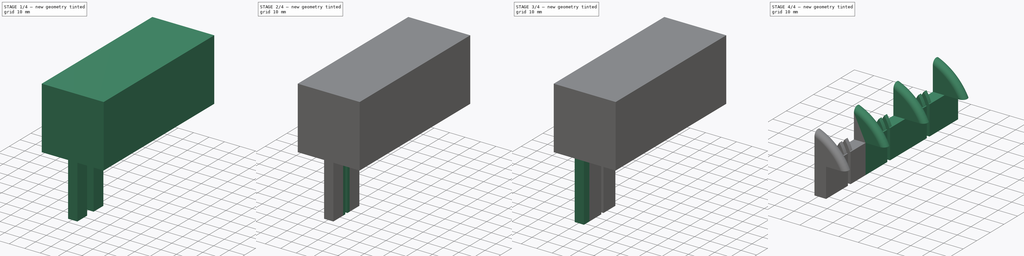
[diagram: build sequence overview — one tinted view per stage of 4, left to right]
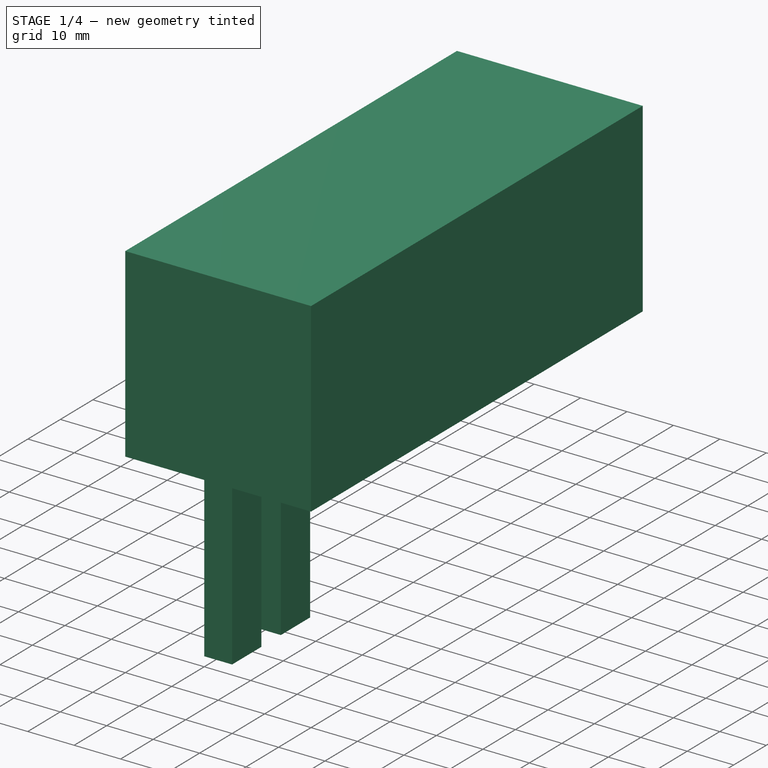
[diagram: stage 1 of 4 — iso view after this stage's code; geometry added in this stage tinted green]
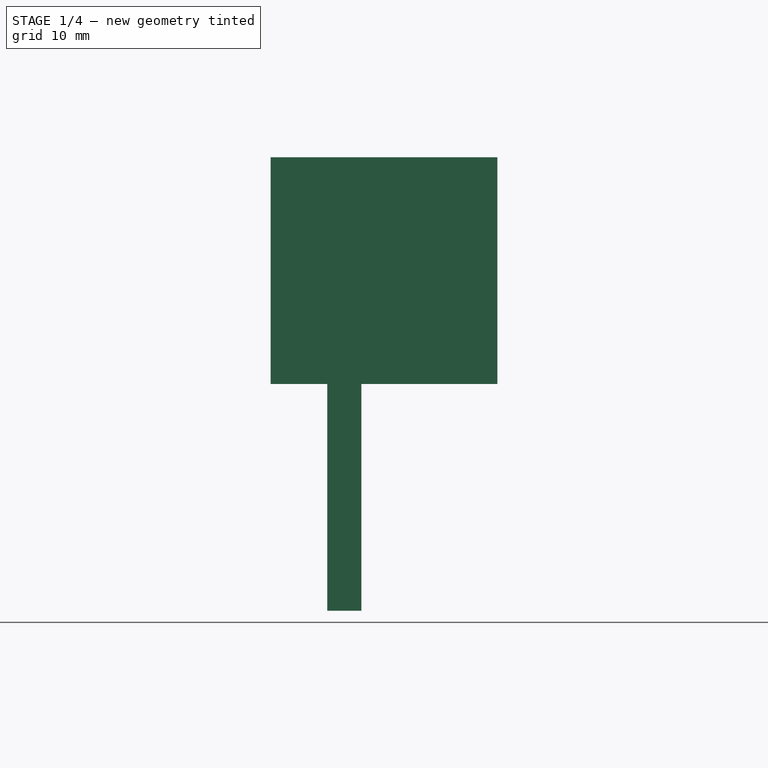
[diagram: stage 1 of 4 — front view after this stage's code; geometry added in this stage tinted green]
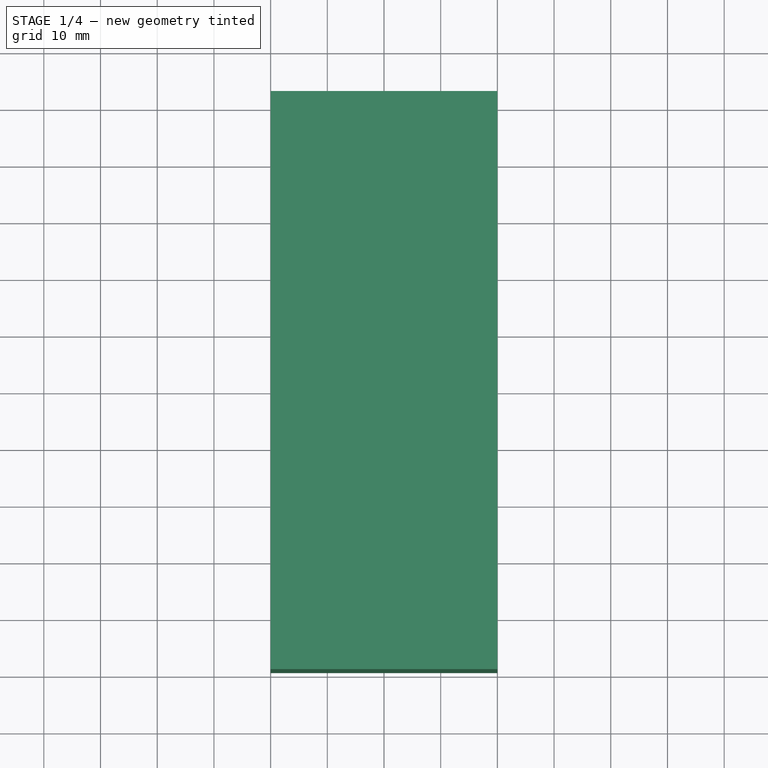
[diagram: stage 1 of 4 — top view after this stage's code; geometry added in this stage tinted green]
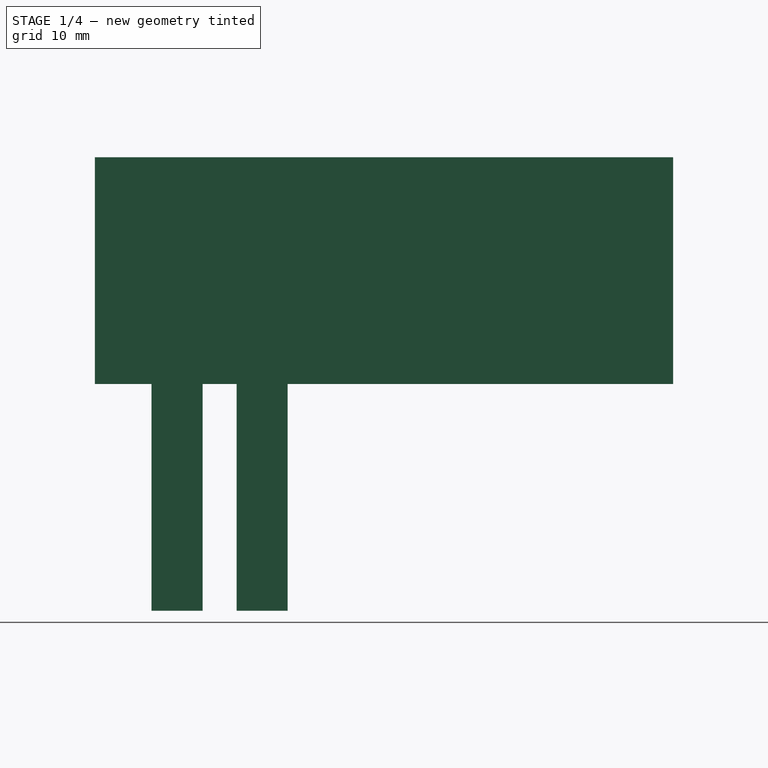
[diagram: stage 1 of 4 — right view after this stage's code; geometry added in this stage tinted green]
FCSTD DOCUMENT  (FreeCAD 0.14R$WCREV$)
Label: red-needlesupport
License: CC-BY 3.0
LicenseURL: http://creativecommons.org/licenses/by/3.0/
objects: Sketcher::SketchObject×3, PartDesign::Pad×3, Part::Box×3, App::MeasureDistance×2, PartDesign::Fillet×1, Part::Cut×1, Part::MultiFuse×1, Part::FeaturePython×1, Part::MultiCommon×1
note: 17 computed .brp shape members not serialized (recipe doc carries the construction recipe); baked Part::Feature solids carry a one-line shape summary decoded from their .brp

FEATURE [Part::Box] Box  label="Cube"
  Height = 55
  Length = 6
  Width = 9
FEATURE [Part::Box] Box001  label="Cube001"
  Height = 55
  Length = 6
  Placement = pos=(0,15,0) rot=(0,0,1;0rad)
  Width = 9
FEATURE [Part::Box] Box002  label="print-area"
  Height = 40
  Length = 40
  Placement = pos=(-10,-10,40) rot=(0,0,1;0rad)
  Width = 102
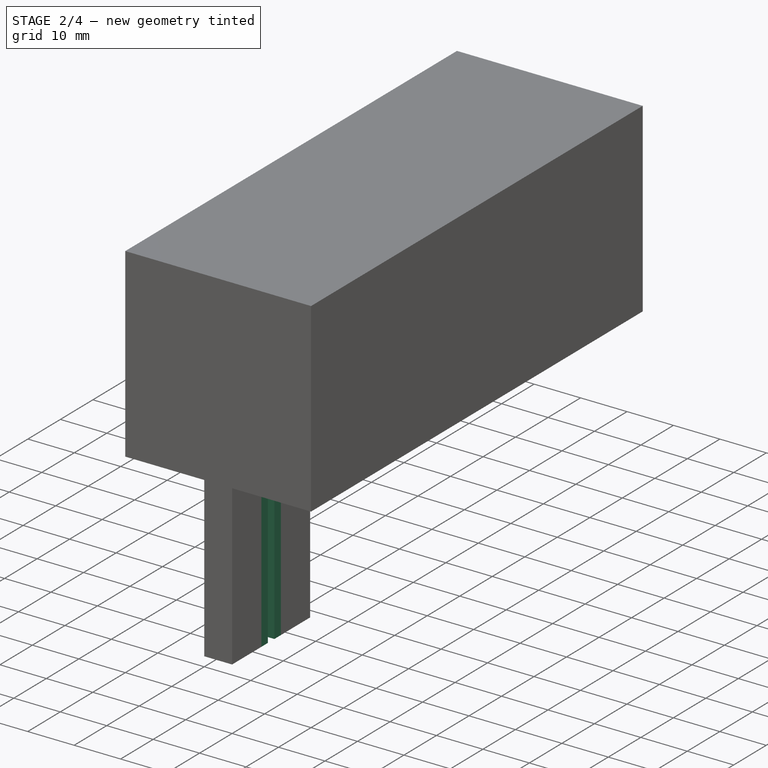
[diagram: stage 2 of 4 — iso view after this stage's code; geometry added in this stage tinted green]
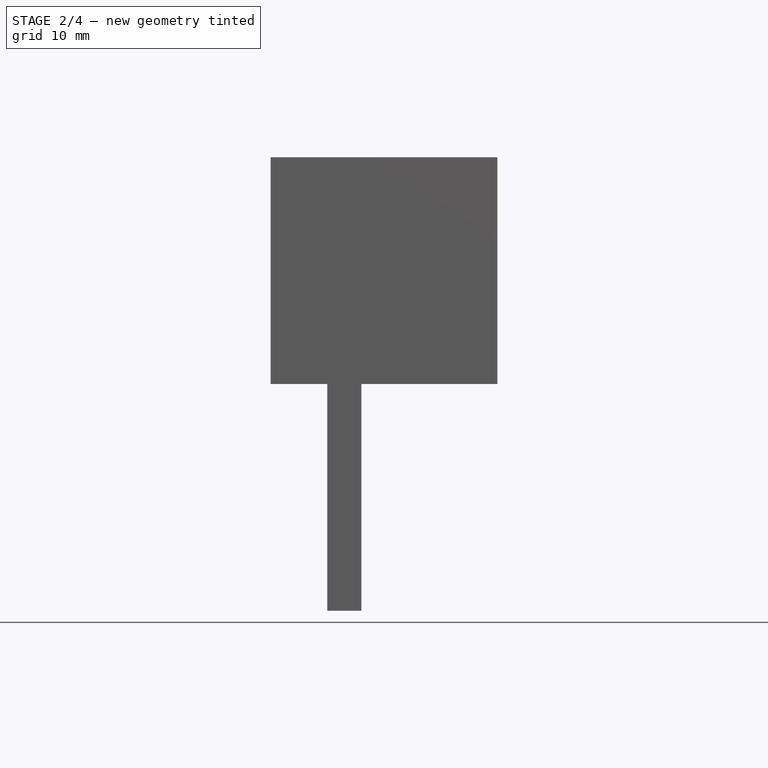
[diagram: stage 2 of 4 — front view after this stage's code; geometry added in this stage tinted green]
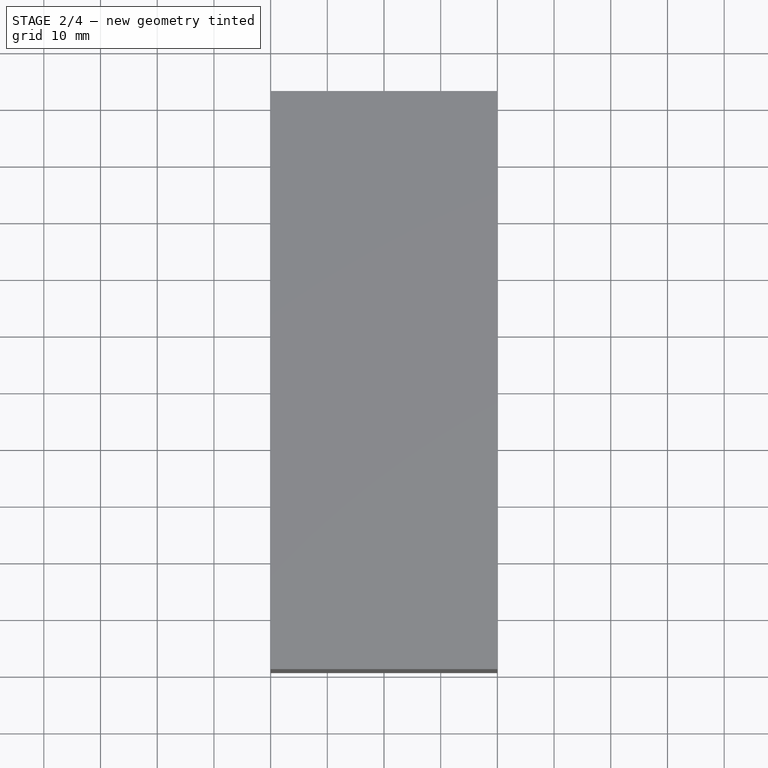
[diagram: stage 2 of 4 — top view after this stage's code; geometry added in this stage tinted green]
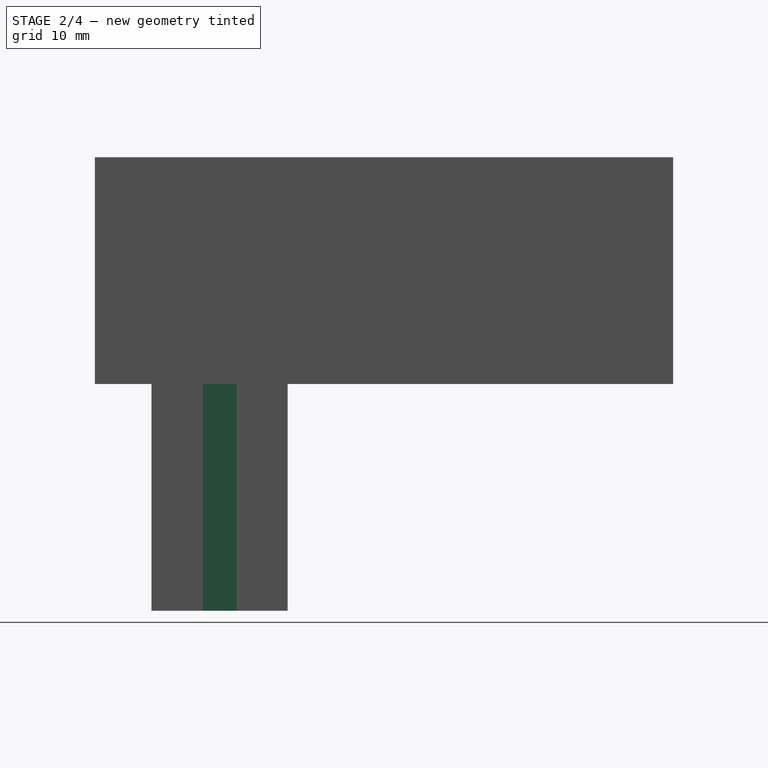
[diagram: stage 2 of 4 — right view after this stage's code; geometry added in this stage tinted green]
FEATURE [Sketcher::SketchObject] Sketch001
  Placement = pos=(0,0,0) rot=(1,0,0;1.5708rad)
  sketch-geometry (9):
    g0: LineSegment StartX=0 StartY=0 StartZ=0 EndX=6 EndY=0 EndZ=0
    g1: LineSegment [constr] StartX=5.5 StartY=55 StartZ=0 EndX=0.5 EndY=55 EndZ=0
    g2: ArcOfCircle CenterX=20.4506 CenterY=48.1497 CenterZ=0 NormalX=0 NormalY=0 NormalZ=1 Radius=21.0939 StartAngle=2.54505 EndAngle=2.81084
    g3: ArcOfCircle CenterX=-14.4506 CenterY=48.1497 CenterZ=0 NormalX=0 NormalY=0 NormalZ=1 Radius=21.0939 StartAngle=0.33075 EndAngle=0.596545
    g4: LineSegment [constr] StartX=3 StartY=60 StartZ=0 EndX=3 EndY=55 EndZ=0
    g5: LineSegment StartX=0.5 StartY=55 StartZ=0 EndX=0 EndY=55 EndZ=0
    g6: LineSegment StartX=5.5 StartY=55 StartZ=0 EndX=6 EndY=55 EndZ=0
    g7: LineSegment StartX=0 StartY=55 StartZ=0 EndX=0 EndY=0 EndZ=0
    g8: LineSegment StartX=6 StartY=55 StartZ=0 EndX=6 EndY=0 EndZ=0
  constraints (26):
    c: Horizontal(g0)
    c: Horizontal(g1)
    c: Coincident(g0,g-1)
    c: Coincident(g2,g1)
    c: Coincident(g3,g2)
    c: Equal(g2,g3)
    c: Coincident(g4,g2)
    c: PointOnObject(g4,g1)
    c: Vertical(g4)
    c: Symmetric(g1,g1,g4)
    c: DistanceX(g0) = 6
    c: DistanceY(g4) = -5
    c: Coincident(g5,g1)
    c: Coincident(g3,g1)
    c: Coincident(g6,g1)
    c: Horizontal(g6)
    c: Horizontal(g5)
    c: Coincident(g7,g5)
    c: Coincident(g7,g-1)
    c: Vertical(g7)
    c: Coincident(g8,g6)
    c: Coincident(g8,g0)
    c: Equal(g6,g5)
    c: Vertical(g8)
    c: DistanceY(g7) = -55
    c: DistanceX(g1) = -5
FEATURE [PartDesign::Pad] Pad001
  Length = 6
  Length2 = 100
  Midplane = true
  Placement = pos=(0,0,0) rot=(1,0,0;1.5708rad)
  Sketch = -> Sketch001
  Type = 0
FEATURE [Sketcher::SketchObject] Sketch002
  Placement = pos=(0,0,0) rot=(1,0,0;1.5708rad)
  sketch-geometry (7):
    g0: LineSegment StartX=2 StartY=0 StartZ=0 EndX=10 EndY=0 EndZ=0
    g1: LineSegment StartX=10 StartY=0 StartZ=0 EndX=10 EndY=70 EndZ=0
    g2: LineSegment [constr] StartX=10 StartY=70 StartZ=0 EndX=2 EndY=70 EndZ=0
    g3: LineSegment StartX=2 StartY=70 StartZ=0 EndX=2 EndY=0 EndZ=0
    g4: ArcOfCircle CenterX=16.081 CenterY=70.1676 CenterZ=0 NormalX=0 NormalY=0 NormalZ=1 Radius=14.082 StartAngle=2.36868 EndAngle=3.1535
    g5: ArcOfCircle CenterX=-4.08097 CenterY=70.1676 CenterZ=0 NormalX=0 NormalY=0 NormalZ=1 Radius=14.082 StartAngle=6.27128 EndAngle=7.0561
    g6: LineSegment [constr] StartX=6 StartY=80 StartZ=0 EndX=6 EndY=70 EndZ=0
  constraints (21):
    c: Coincident(g0,g1)
    c: Coincident(g1,g2)
    c: Coincident(g2,g3)
    c: Coincident(g3,g0)
    c: Horizontal(g0)
    c: Horizontal(g2)
    c: Vertical(g1)
    c: Vertical(g3)
    c: Coincident(g4,g2)
    c: Coincident(g5,g4)
    c: Coincident(g5,g1)
    c: Equal(g4,g5)
    c: Coincident(g6,g4)
    c: PointOnObject(g6,g2)
    c: Vertical(g6)
    c: Symmetric(g2,g2,g6)
    c: DistanceX(g0) = 8
    c: DistanceY(g3) = -70
    c: DistanceY(g6) = -10
    c: DistanceX(g-1,g0) = 2
    c: DistanceY(g-1,g0) = 0
FEATURE [PartDesign::Pad] Pad002
  Length = 2
  Length2 = 100
  Midplane = true
  Placement = pos=(0,0,0) rot=(1,0,0;1.5708rad)
  Sketch = -> Sketch002
  Type = 0
FEATURE [Part::Cut] Cut
  Base = -> Pad001
  Placement = pos=(0,12,0) rot=(0,0,1;0rad)
  Tool = -> Pad002
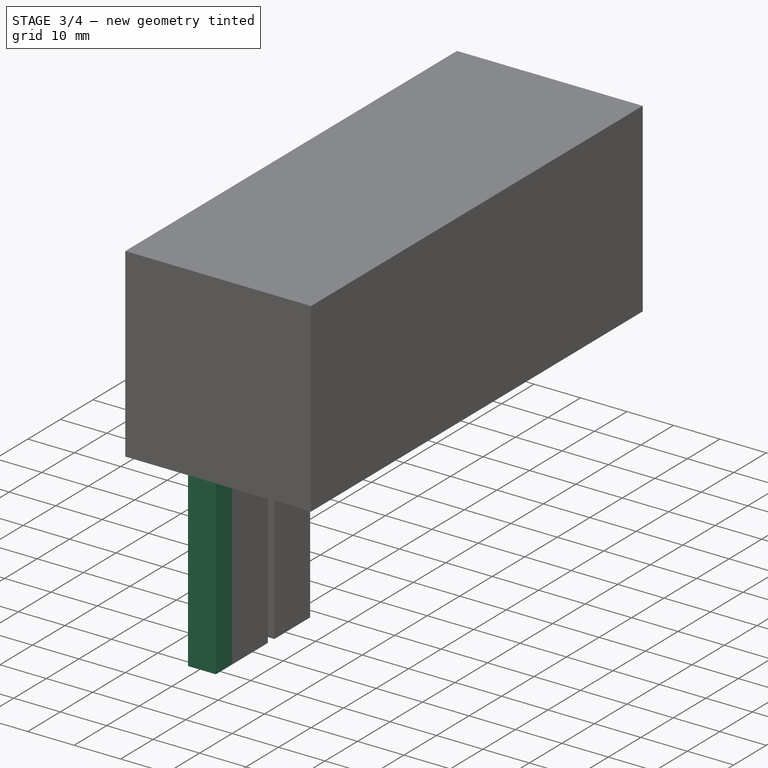
[diagram: stage 3 of 4 — iso view after this stage's code; geometry added in this stage tinted green]
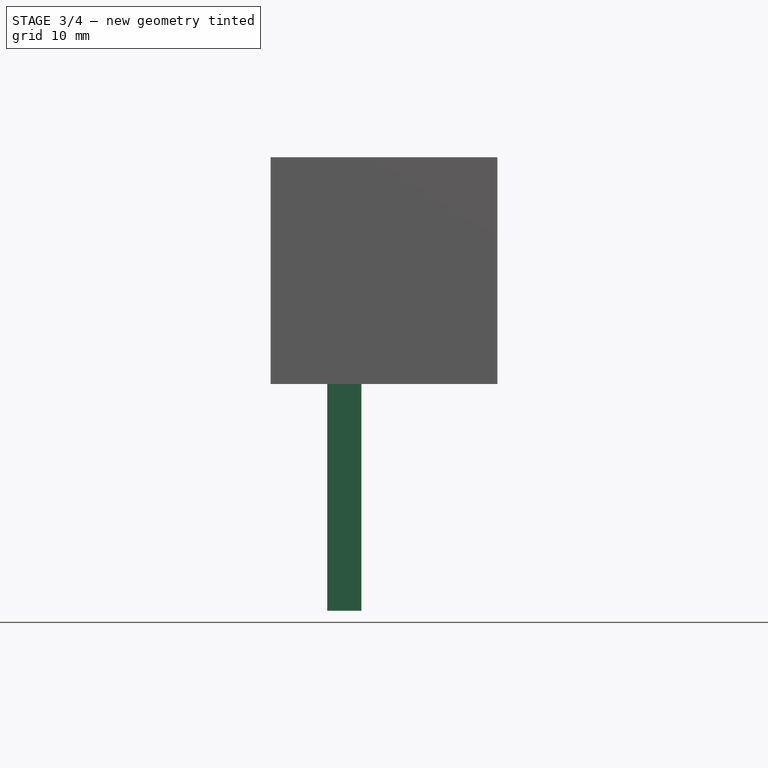
[diagram: stage 3 of 4 — front view after this stage's code; geometry added in this stage tinted green]
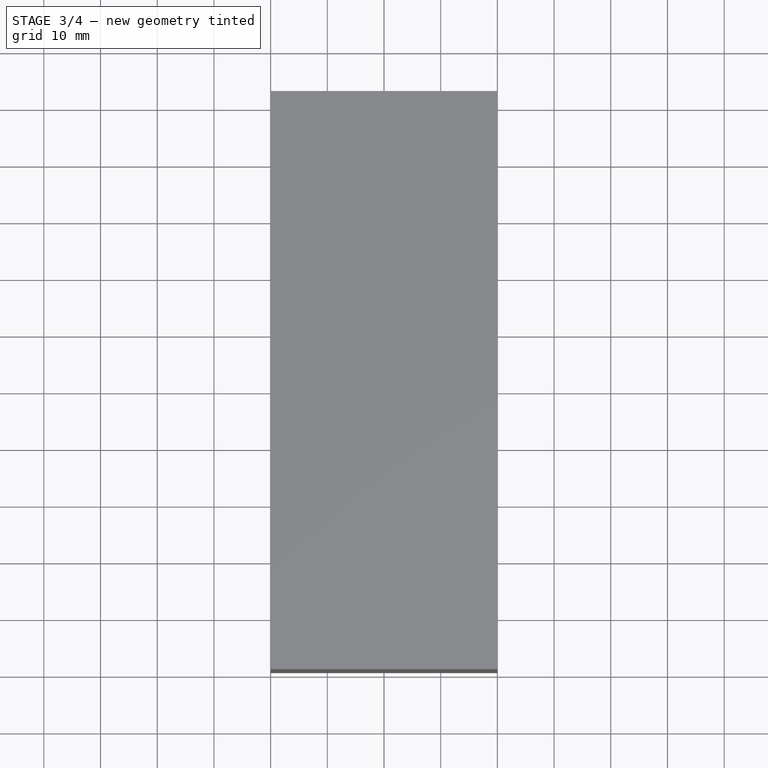
[diagram: stage 3 of 4 — top view after this stage's code; geometry added in this stage tinted green]
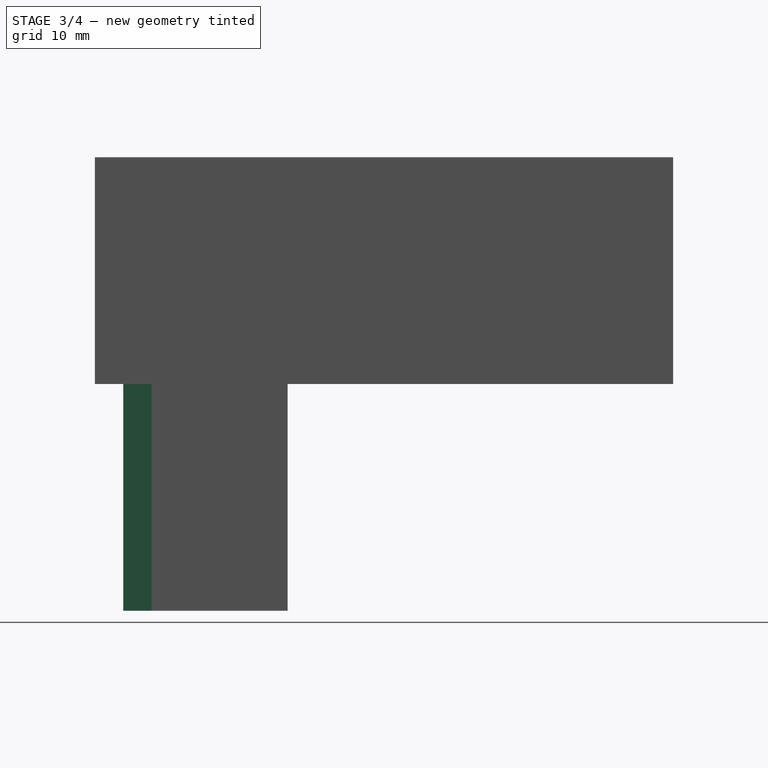
[diagram: stage 3 of 4 — right view after this stage's code; geometry added in this stage tinted green]
FEATURE [Sketcher::SketchObject] Sketch
  Placement = pos=(0,0,0) rot=(1,0,0;1.5708rad)
  sketch-geometry (5):
    g0: LineSegment StartX=0 StartY=0 StartZ=0 EndX=0 EndY=70 EndZ=0
    g1: ArcOfCircle CenterX=-11.0984 CenterY=42.1284 CenterZ=0 NormalX=0 NormalY=0 NormalZ=1 Radius=30 StartAngle=0.443444 EndAngle=1.19185
    g2: LineSegment StartX=16 StartY=55 StartZ=0 EndX=6 EndY=55 EndZ=0
    g3: LineSegment StartX=6 StartY=55 StartZ=0 EndX=6 EndY=0 EndZ=0
    g4: LineSegment StartX=6 StartY=0 StartZ=0 EndX=0 EndY=0 EndZ=0
  constraints (16):
    c: Coincident(g0,g-1)
    c: Vertical(g0)
    c: Coincident(g1,g0)
    c: Coincident(g2,g1)
    c: Horizontal(g2)
    c: Coincident(g3,g2)
    c: PointOnObject(g3,g-1)
    c: Vertical(g3)
    c: Coincident(g4,g3)
    c: Horizontal(g4)
    c: DistanceY(g3) = -55
    c: DistanceX(g2) = -10
    c: DistanceX(g4) = -6
    c: Coincident(g4,g-1)
    c: Radius(g1) = 30
    c: DistanceY(g1,g0) = 15
FEATURE [PartDesign::Pad] Pad
  Length = 5
  Length2 = 100
  Placement = pos=(0,0,0) rot=(1,0,0;1.5708rad)
  Sketch = -> Sketch
  Type = 0
FEATURE [PartDesign::Fillet] Fillet
  Base = -> Pad [Edge7,Edge6]
  Placement = pos=(0,0,0) rot=(1,0,0;1.5708rad)
  Radius = 2.4
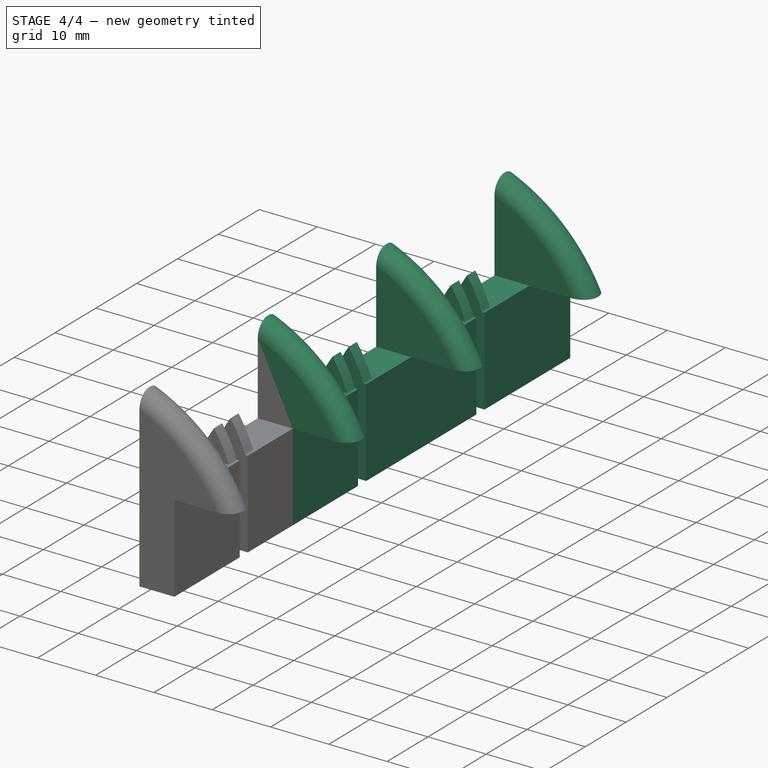
[diagram: stage 4 of 4 — iso view after this stage's code; geometry added in this stage tinted green]
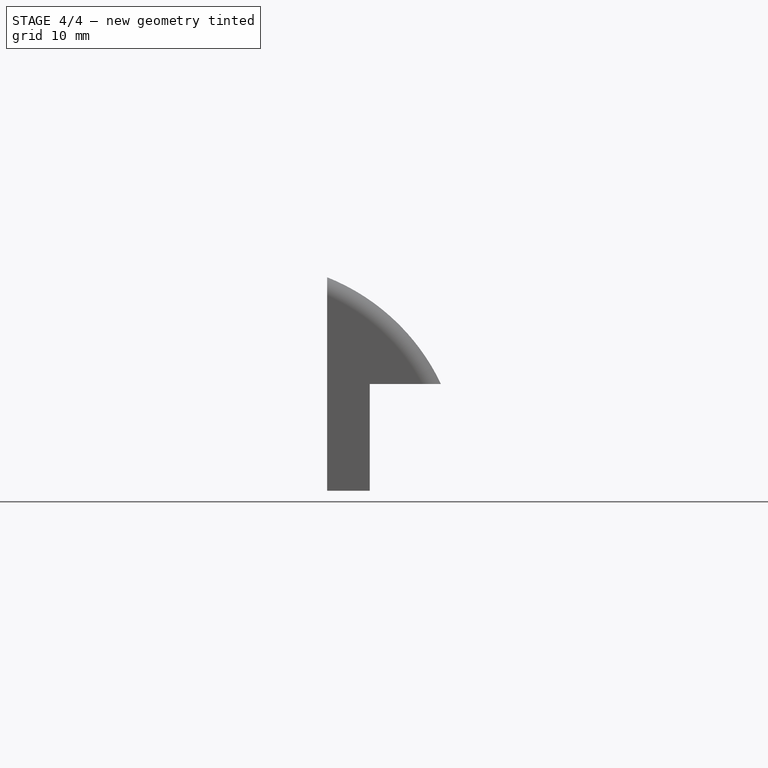
[diagram: stage 4 of 4 — front view after this stage's code; geometry added in this stage tinted green]
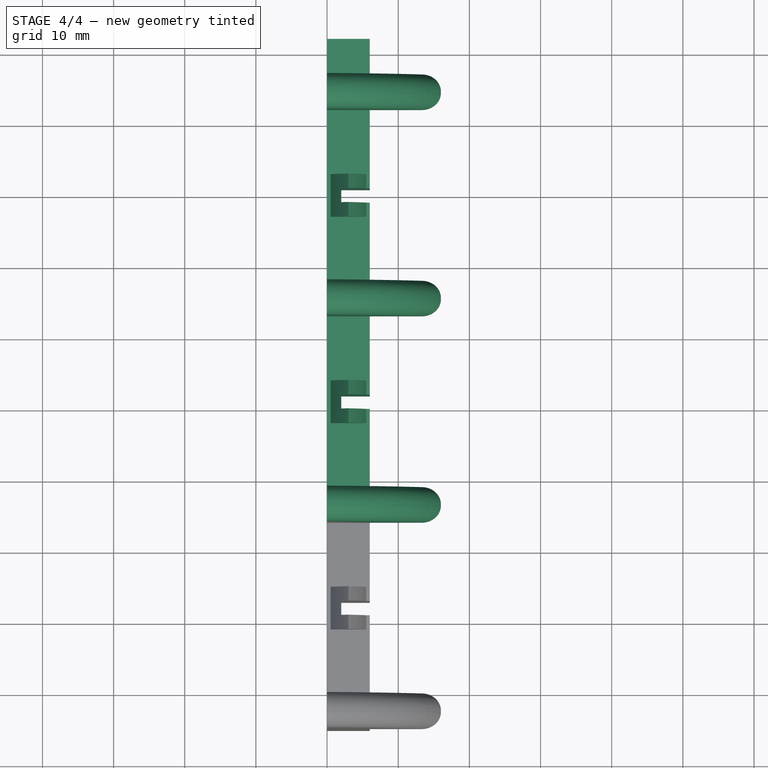
[diagram: stage 4 of 4 — top view after this stage's code; geometry added in this stage tinted green]
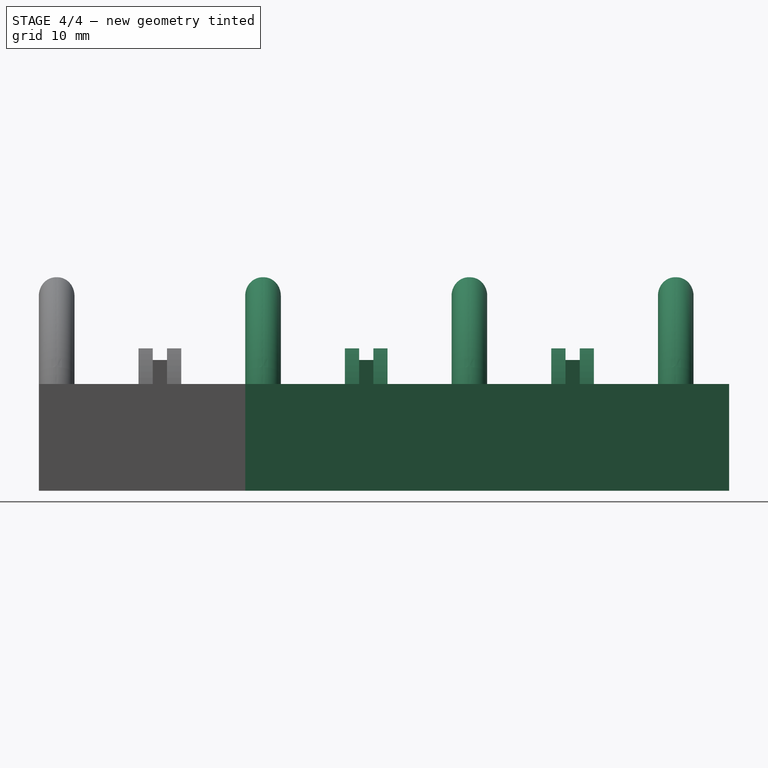
[diagram: stage 4 of 4 — right view after this stage's code; geometry added in this stage tinted green]
FEATURE [App::MeasureDistance] Distance  label="Distance: 60.000"
  Distance = 60
  P1 = (10,24,0)
  P2 = (10,24,60)
FEATURE [App::MeasureDistance] Distance001  label="Distance: 5.983"
  Distance = 5.98261
  P1 = (10,9.01839,0.109206)
  P2 = (10,15,0)
FEATURE [Part::MultiFuse] Fusion
  Shapes = -> [Box001,Box,Cut,Fillet]
FEATURE [Part::FeaturePython] Array  # Draft array (typed FeaturePython)
  Angle = 360
  ArrayType = 0
  Axis = (0,0,1)
  Base = -> Fusion
  Center = (0,0,0)
  IntervalX = (0,0,0)
  IntervalY = (0,29,0)
  IntervalZ = (0,0,0)
  NumberPolar = 1
  NumberX = 1
  NumberY = 4
  NumberZ = 1
FEATURE [Part::MultiCommon] Common
  Shapes = -> [Array,Box002]
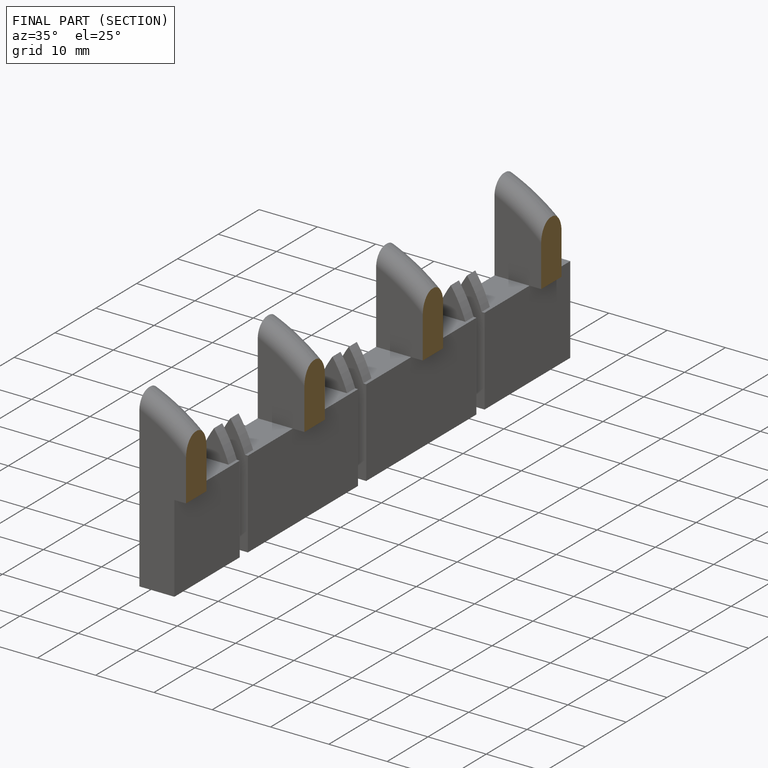
[diagram: finished part — half-section view (interior)]
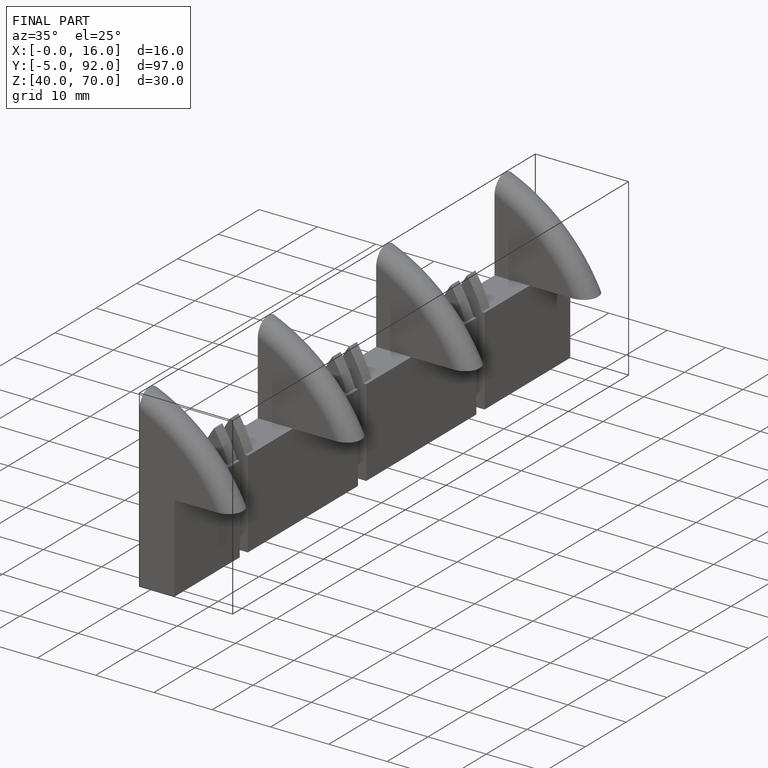
[diagram: finished part — iso view with bounding-box wireframe]
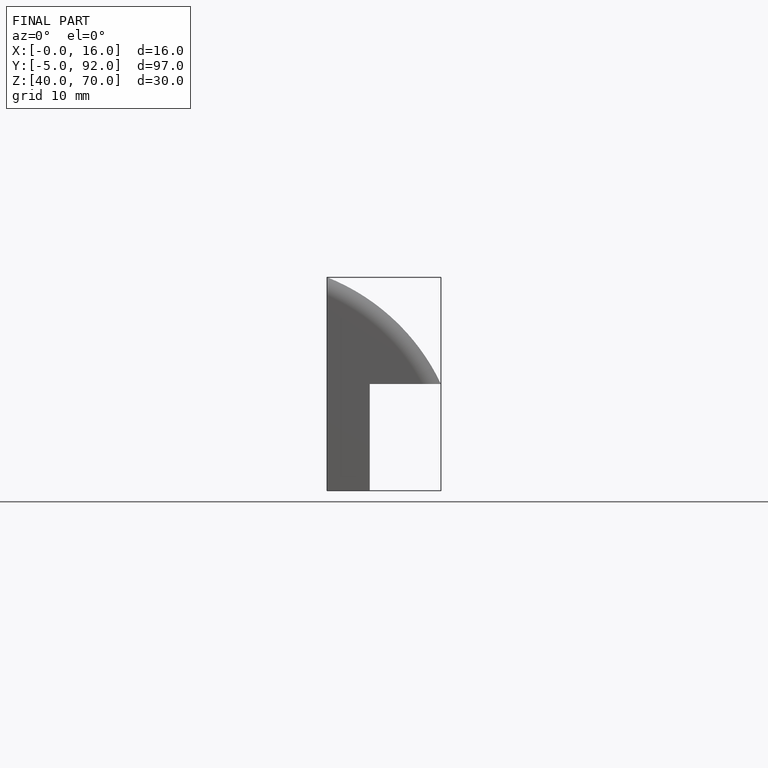
[diagram: finished part — front view with bounding-box wireframe]
